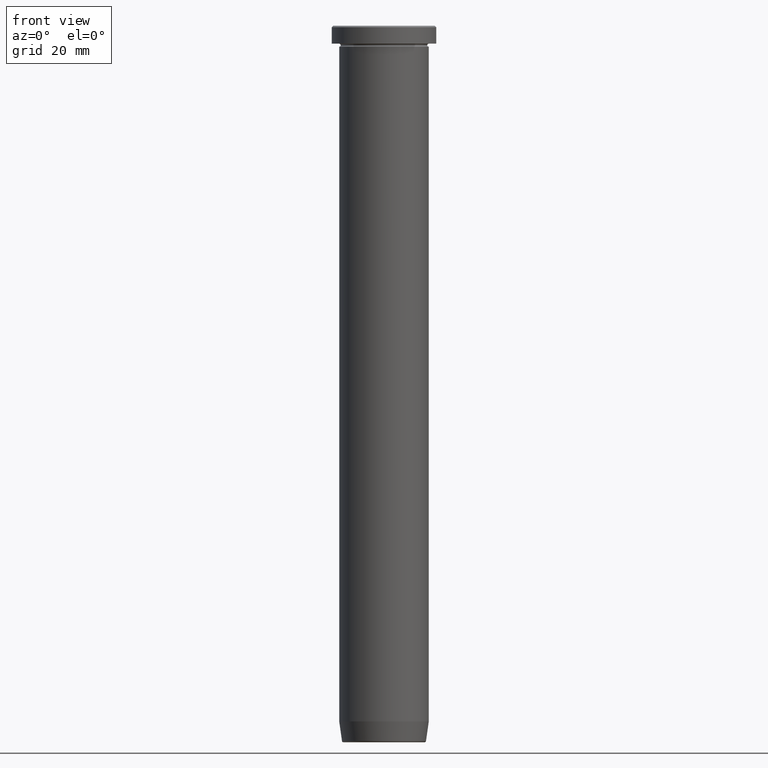
[diagram: clean part render]
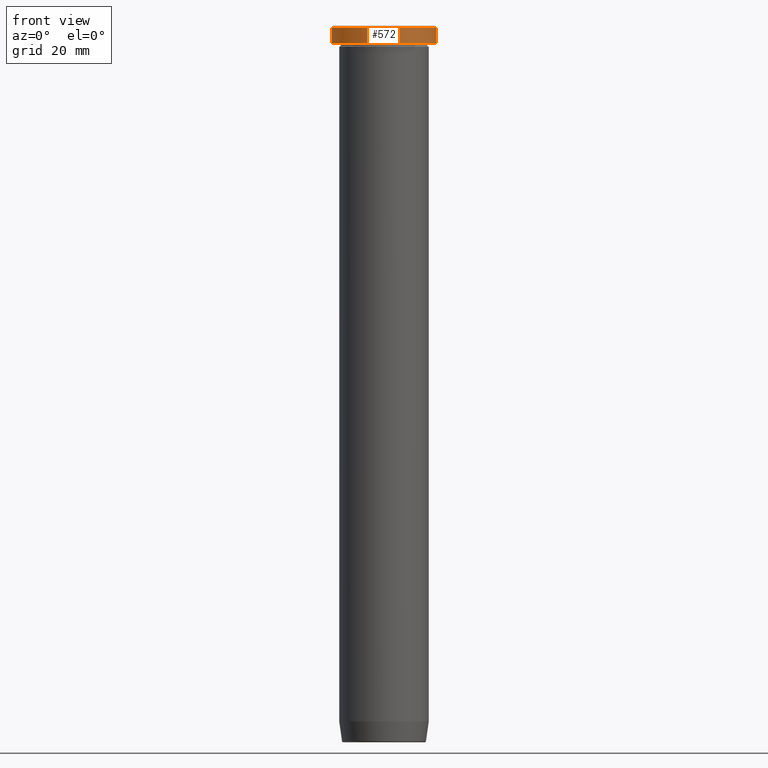
[diagram: same view with one face highlighted and labeled with its STEP entity id]
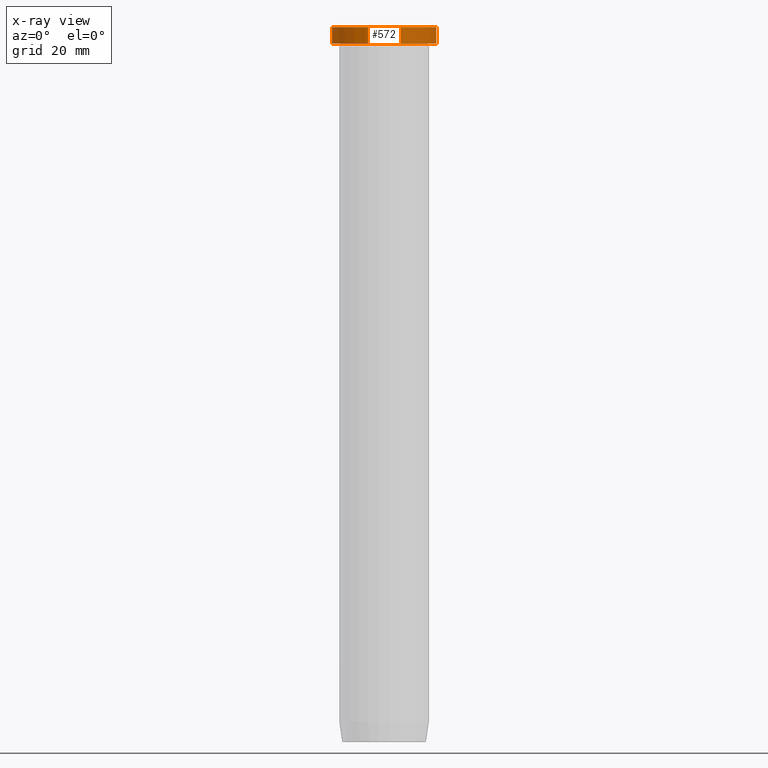
[diagram: x-ray of the same camera — body ghosted, the highlighted face saturated]
A machine part, front view. The second image highlights one B-rep face of the part: STEP entity #572.
The next image is the same camera in x-ray: the body ghosted, the highlighted face saturated — about 0% of this face is hidden behind the body in this view.
In plain terms, the highlighted cylindrical surface (partial cylindrical patch) has radius 17.5 mm, axis along (-0, -0, 1).
Its self-contained STEP definition (entity closure, byte-faithful):
#2 = EDGE_CURVE ( 'NONE', #445, #583, #279, .T. ) ;
#12 = EDGE_CURVE ( 'NONE', #251, #122, #62, .T. ) ;
#24 = EDGE_CURVE ( 'NONE', #122, #445, #64, .T. ) ;
#26 = CARTESIAN_POINT ( 'NONE',  ( -17.50000000000000000, 2.143131898507868248E-15, -5.999999999999999112 ) ) ;
#55 = DIRECTION ( 'NONE',  ( -0.000000000000000000, -0.000000000000000000, 1.000000000000000000 ) ) ;
#56 = DIRECTION ( 'NONE',  ( 1.000000000000000000, 0.000000000000000000, 0.000000000000000000 ) ) ;
#60 = DIRECTION ( 'NONE',  ( -0.000000000000000000, -0.000000000000000000, 1.000000000000000000 ) ) ;
#62 = CIRCLE ( 'NONE', #576, 17.50000000000000000 ) ;
#64 = LINE ( 'NONE', #389, #393 ) ;
#97 = AXIS2_PLACEMENT_3D ( 'NONE', #421, #249, #236 ) ;
#101 = CYLINDRICAL_SURFACE ( 'NONE', #281, 17.50000000000000000 ) ;
#122 = VERTEX_POINT ( 'NONE', #379 ) ;
#182 = VECTOR ( 'NONE', #261, 1000.000000000000000 ) ;
#205 = EDGE_CURVE ( 'NONE', #251, #583, #584, .T. ) ;
#236 = DIRECTION ( 'NONE',  ( 1.000000000000000000, 0.000000000000000000, 0.000000000000000000 ) ) ;
#240 = CARTESIAN_POINT ( 'NONE',  ( 0.000000000000000000, 0.000000000000000000, -5.999999999999999112 ) ) ;
#244 = ORIENTED_EDGE ( 'NONE', *, *, #24, .T. ) ;
#249 = DIRECTION ( 'NONE',  ( 0.000000000000000000, 0.000000000000000000, -1.000000000000000000 ) ) ;
#251 = VERTEX_POINT ( 'NONE', #26 ) ;
#261 = DIRECTION ( 'NONE',  ( -0.000000000000000000, -0.000000000000000000, 1.000000000000000000 ) ) ;
#279 = CIRCLE ( 'NONE', #97, 17.50000000000000000 ) ;
#281 = AXIS2_PLACEMENT_3D ( 'NONE', #474, #60, #56 ) ;
#284 = FACE_OUTER_BOUND ( 'NONE', #470, .T. ) ;
#339 = DIRECTION ( 'NONE',  ( -0.000000000000000000, -0.000000000000000000, 1.000000000000000000 ) ) ;
#353 = ORIENTED_EDGE ( 'NONE', *, *, #12, .T. ) ;
#379 = CARTESIAN_POINT ( 'NONE',  ( 17.50000000000000000, 0.000000000000000000, -5.999999999999999112 ) ) ;
#389 = CARTESIAN_POINT ( 'NONE',  ( 17.50000000000000000, 0.000000000000000000, 0.000000000000000000 ) ) ;
#393 = VECTOR ( 'NONE', #55, 1000.000000000000000 ) ;
#399 = ORIENTED_EDGE ( 'NONE', *, *, #2, .T. ) ;
#421 = CARTESIAN_POINT ( 'NONE',  ( 0.000000000000000000, 0.000000000000000000, -0.5000000000000073275 ) ) ;
#445 = VERTEX_POINT ( 'NONE', #459 ) ;
#459 = CARTESIAN_POINT ( 'NONE',  ( 17.50000000000000000, 0.000000000000000000, -0.5000000000000073275 ) ) ;
#470 = EDGE_LOOP ( 'NONE', ( #504, #353, #244, #399 ) ) ;
#474 = CARTESIAN_POINT ( 'NONE',  ( 0.000000000000000000, 0.000000000000000000, 0.000000000000000000 ) ) ;
#475 = DIRECTION ( 'NONE',  ( 1.000000000000000000, 0.000000000000000000, 0.000000000000000000 ) ) ;
#476 = CARTESIAN_POINT ( 'NONE',  ( -17.50000000000000000, 2.143131898507868248E-15, -0.5000000000000073275 ) ) ;
#493 = CARTESIAN_POINT ( 'NONE',  ( -17.50000000000000000, 2.143131898507868248E-15, 0.000000000000000000 ) ) ;
#504 = ORIENTED_EDGE ( 'NONE', *, *, #205, .F. ) ;
#572 = ADVANCED_FACE ( 'NONE', ( #284 ), #101, .T. ) ;
#576 = AXIS2_PLACEMENT_3D ( 'NONE', #240, #339, #475 ) ;
#583 = VERTEX_POINT ( 'NONE', #476 ) ;
#584 = LINE ( 'NONE', #493, #182 ) ;